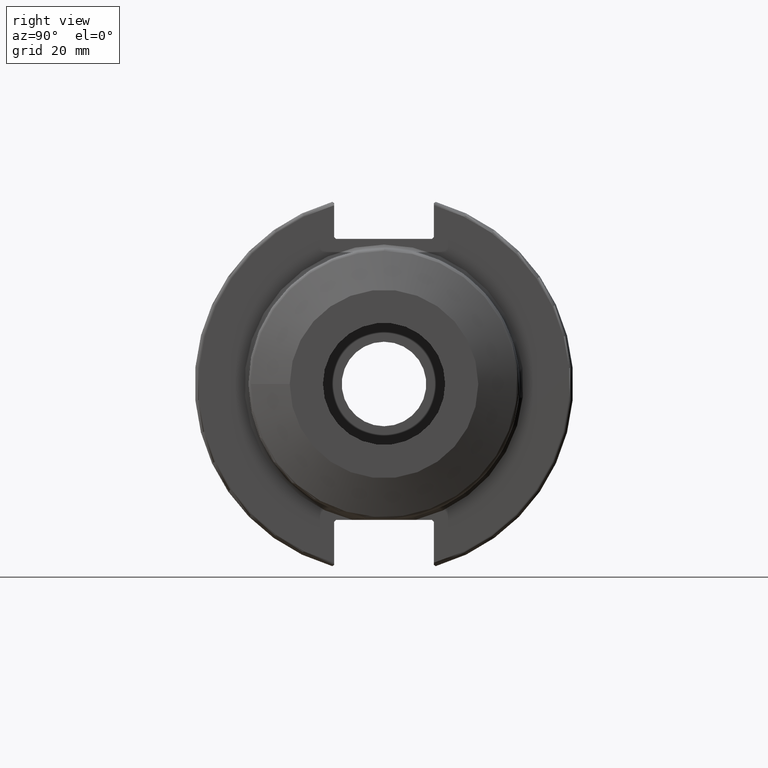
[diagram: clean part render]
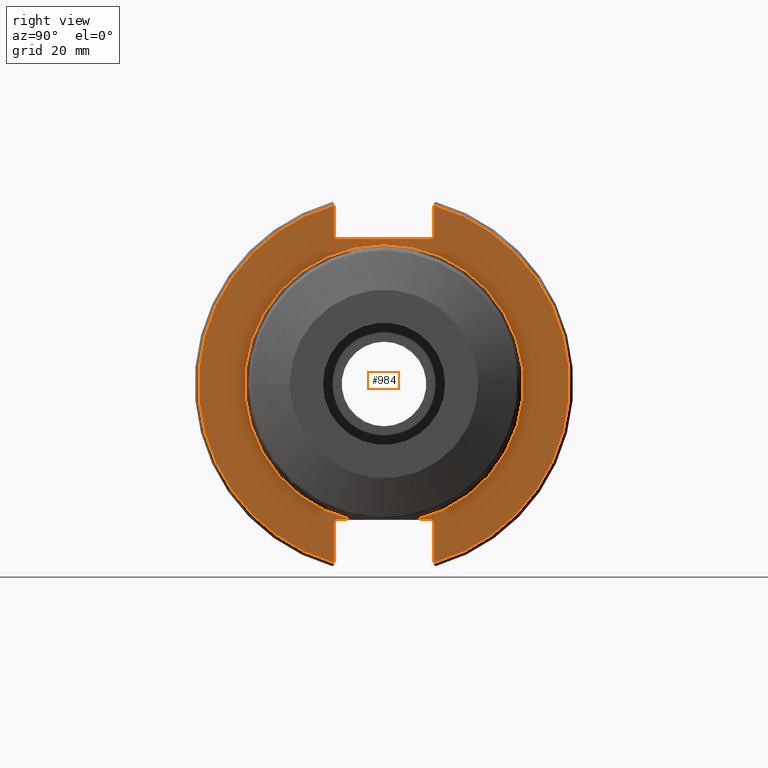
[diagram: same view with one face highlighted and labeled with its STEP entity id]
A machine part, right view. The second image highlights one B-rep face of the part: STEP entity #984.
In plain terms, the highlighted planar face has unit normal (1, 0, 0).
Its self-contained STEP definition (entity closure, byte-faithful):
#42=PLANE('',#1087);
#109=LINE('',#1579,#177);
#115=LINE('',#1605,#183);
#116=LINE('',#1606,#184);
#117=LINE('',#1608,#185);
#118=LINE('',#1610,#186);
#119=LINE('',#1612,#187);
#120=LINE('',#1614,#188);
#121=LINE('',#1616,#189);
#122=LINE('',#1620,#190);
#123=LINE('',#1622,#191);
#124=LINE('',#1623,#192);
#177=VECTOR('',#1249,10.);
#183=VECTOR('',#1257,10.);
#184=VECTOR('',#1258,10.);
#185=VECTOR('',#1259,10.);
#186=VECTOR('',#1260,10.);
#187=VECTOR('',#1261,10.);
#188=VECTOR('',#1262,10.);
#189=VECTOR('',#1263,10.);
#190=VECTOR('',#1266,10.);
#191=VECTOR('',#1267,10.);
#192=VECTOR('',#1268,10.);
#254=FACE_OUTER_BOUND('',#314,.T.);
#314=EDGE_LOOP('',(#741,#742,#743,#744,#745,#746,#747,#748,#749,#750,#751,
#752,#753,#754));
#369=CIRCLE('',#1063,36.25);
#381=CIRCLE('',#1083,48.2125);
#383=CIRCLE('',#1088,48.2125);
#417=VERTEX_POINT('',#1462);
#418=VERTEX_POINT('',#1471);
#440=VERTEX_POINT('',#1534);
#441=VERTEX_POINT('',#1541);
#447=VERTEX_POINT('',#1578);
#454=VERTEX_POINT('',#1604);
#455=VERTEX_POINT('',#1607);
#456=VERTEX_POINT('',#1609);
#457=VERTEX_POINT('',#1611);
#458=VERTEX_POINT('',#1613);
#459=VERTEX_POINT('',#1615);
#460=VERTEX_POINT('',#1617);
#461=VERTEX_POINT('',#1619);
#462=VERTEX_POINT('',#1621);
#521=EDGE_CURVE('',#417,#418,#369,.T.);
#548=EDGE_CURVE('',#440,#441,#381,.T.);
#556=EDGE_CURVE('',#447,#441,#109,.T.);
#565=EDGE_CURVE('',#417,#454,#115,.T.);
#566=EDGE_CURVE('',#447,#454,#116,.T.);
#567=EDGE_CURVE('',#440,#455,#117,.T.);
#568=EDGE_CURVE('',#456,#455,#118,.T.);
#569=EDGE_CURVE('',#456,#457,#119,.T.);
#570=EDGE_CURVE('',#458,#457,#120,.T.);
#571=EDGE_CURVE('',#458,#459,#121,.T.);
#572=EDGE_CURVE('',#460,#459,#383,.T.);
#573=EDGE_CURVE('',#460,#461,#122,.T.);
#574=EDGE_CURVE('',#462,#461,#123,.T.);
#575=EDGE_CURVE('',#462,#418,#124,.T.);
#741=ORIENTED_EDGE('',*,*,#521,.F.);
#742=ORIENTED_EDGE('',*,*,#565,.T.);
#743=ORIENTED_EDGE('',*,*,#566,.F.);
#744=ORIENTED_EDGE('',*,*,#556,.T.);
#745=ORIENTED_EDGE('',*,*,#548,.F.);
#746=ORIENTED_EDGE('',*,*,#567,.T.);
#747=ORIENTED_EDGE('',*,*,#568,.F.);
#748=ORIENTED_EDGE('',*,*,#569,.T.);
#749=ORIENTED_EDGE('',*,*,#570,.F.);
#750=ORIENTED_EDGE('',*,*,#571,.T.);
#751=ORIENTED_EDGE('',*,*,#572,.F.);
#752=ORIENTED_EDGE('',*,*,#573,.T.);
#753=ORIENTED_EDGE('',*,*,#574,.F.);
#754=ORIENTED_EDGE('',*,*,#575,.T.);
#984=ADVANCED_FACE('',(#254),#42,.T.);
#1063=AXIS2_PLACEMENT_3D('',#1472,#1186,#1187);
#1083=AXIS2_PLACEMENT_3D('',#1542,#1239,#1240);
#1087=AXIS2_PLACEMENT_3D('',#1603,#1255,#1256);
#1088=AXIS2_PLACEMENT_3D('',#1618,#1264,#1265);
#1186=DIRECTION('center_axis',(1.,0.,0.));
#1187=DIRECTION('ref_axis',(0.,-1.,-1.22464679914735E-16));
#1239=DIRECTION('center_axis',(-1.,0.,0.));
#1240=DIRECTION('ref_axis',(0.,1.,-6.12323399573677E-17));
#1249=DIRECTION('',(0.,0.,-1.));
#1255=DIRECTION('center_axis',(1.,0.,0.));
#1256=DIRECTION('ref_axis',(0.,0.,-1.));
#1257=DIRECTION('',(0.,1.,0.));
#1258=DIRECTION('',(0.,-0.707106781186549,0.707106781186546));
#1259=DIRECTION('',(0.,0.,-1.));
#1260=DIRECTION('',(0.,0.707106781186549,0.707106781186546));
#1261=DIRECTION('',(0.,-1.,0.));
#1262=DIRECTION('',(0.,0.707106781186549,-0.707106781186546));
#1263=DIRECTION('',(0.,0.,1.));
#1264=DIRECTION('center_axis',(-1.,0.,0.));
#1265=DIRECTION('ref_axis',(0.,-1.,1.60812264967664E-16));
#1266=DIRECTION('',(0.,0.,1.));
#1267=DIRECTION('',(0.,-0.707106781186549,-0.707106781186546));
#1268=DIRECTION('',(0.,1.,0.));
#1462=CARTESIAN_POINT('',(19.05,8.21881159292513,-35.306));
#1471=CARTESIAN_POINT('',(19.05,-8.21881159292513,-35.306));
#1472=CARTESIAN_POINT('Origin',(19.05,0.,0.));
#1534=CARTESIAN_POINT('',(19.05,12.95,46.4407434937254));
#1541=CARTESIAN_POINT('',(19.05,12.95,-46.4407434937254));
#1542=CARTESIAN_POINT('Origin',(19.05,0.,0.));
#1578=CARTESIAN_POINT('',(19.05,12.95,-35.806));
#1579=CARTESIAN_POINT('',(19.05,12.95,-17.653));
#1603=CARTESIAN_POINT('Origin',(19.05,0.,0.));
#1604=CARTESIAN_POINT('',(19.05,12.45,-35.306));
#1605=CARTESIAN_POINT('',(19.05,-3.33066907387547E-15,-35.306));
#1606=CARTESIAN_POINT('',(19.05,0.635999999999982,-23.492));
#1607=CARTESIAN_POINT('',(19.05,12.95,38.219));
#1608=CARTESIAN_POINT('',(19.05,12.95,18.8595));
#1609=CARTESIAN_POINT('',(19.05,12.45,37.719));
#1610=CARTESIAN_POINT('',(19.05,0.0327499999999836,25.30175));
#1611=CARTESIAN_POINT('',(19.05,-12.45,37.719));
#1612=CARTESIAN_POINT('',(19.05,0.,37.719));
#1613=CARTESIAN_POINT('',(19.05,-12.95,38.219));
#1614=CARTESIAN_POINT('',(19.05,-0.0327499999999817,25.30175));
#1615=CARTESIAN_POINT('',(19.05,-12.95,46.4407434937254));
#1616=CARTESIAN_POINT('',(19.05,-12.95,18.8595));
#1617=CARTESIAN_POINT('',(19.05,-12.95,-46.4407434937254));
#1618=CARTESIAN_POINT('Origin',(19.05,0.,0.));
#1619=CARTESIAN_POINT('',(19.05,-12.95,-35.806));
#1620=CARTESIAN_POINT('',(19.05,-12.95,-17.653));
#1621=CARTESIAN_POINT('',(19.05,-12.45,-35.306));
#1622=CARTESIAN_POINT('',(19.05,-0.635999999999989,-23.492));
#1623=CARTESIAN_POINT('',(19.05,-3.33066907387547E-15,-35.306));